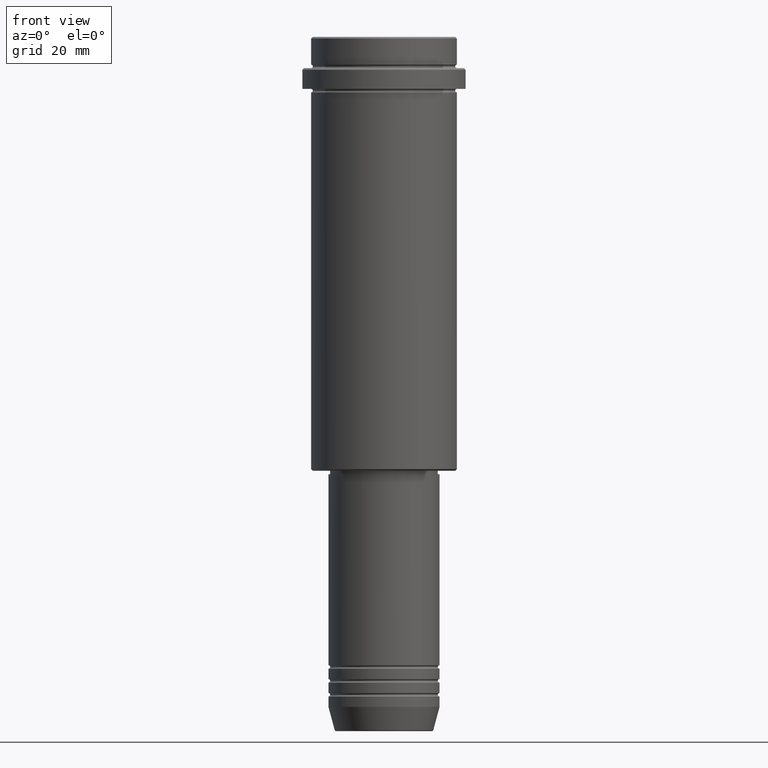
[diagram: clean part render]
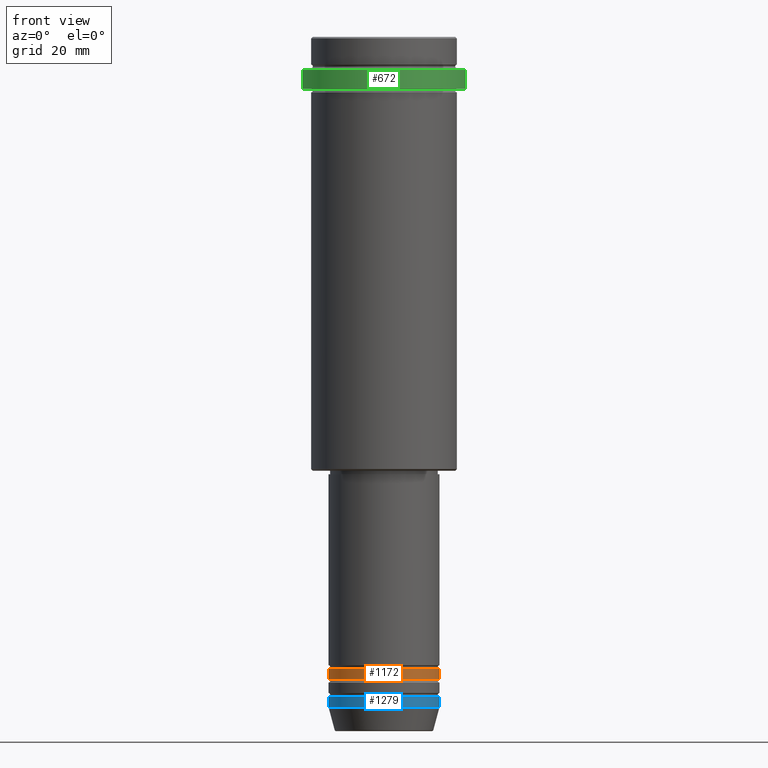
[diagram: same view with three faces highlighted in distinct colors, each labeled with its STEP entity id]
A machine part, front view with three faces highlighted in distinct colors.
Their STEP definitions:

[orange] entity #1172 — the highlighted cylindrical surface (partial cylindrical patch) has radius 16 mm, axis along (-0, -0, 1).
#6 = CYLINDRICAL_SURFACE ( 'NONE', #944, 16.00000000000000000 ) ;
#19 = DIRECTION ( 'NONE',  ( 1.000000000000000000, 0.000000000000000000, 0.000000000000000000 ) ) ;
#49 = CARTESIAN_POINT ( 'NONE',  ( 16.00000000000000000, 0.000000000000000000, -184.9999999999998863 ) ) ;
#88 = VERTEX_POINT ( 'NONE', #446 ) ;
#100 = LINE ( 'NONE', #865, #1234 ) ;
#104 = EDGE_CURVE ( 'NONE', #1313, #421, #488, .T. ) ;
#121 = CARTESIAN_POINT ( 'NONE',  ( 0.000000000000000000, 0.000000000000000000, -181.9999999999998863 ) ) ;
#170 = CARTESIAN_POINT ( 'NONE',  ( 16.00000000000000000, 0.000000000000000000, -181.9999999999998863 ) ) ;
#180 = CARTESIAN_POINT ( 'NONE',  ( -16.00000000000000000, 1.959434878635765131E-15, -184.9999999999998863 ) ) ;
#206 = DIRECTION ( 'NONE',  ( 1.000000000000000000, 0.000000000000000000, 0.000000000000000000 ) ) ;
#215 = VERTEX_POINT ( 'NONE', #180 ) ;
#328 = ORIENTED_EDGE ( 'NONE', *, *, #104, .T. ) ;
#329 = ORIENTED_EDGE ( 'NONE', *, *, #1190, .F. ) ;
#360 = VECTOR ( 'NONE', #1272, 1000.000000000000000 ) ;
#421 = VERTEX_POINT ( 'NONE', #170 ) ;
#446 = CARTESIAN_POINT ( 'NONE',  ( -16.00000000000000000, 1.959434878635765131E-15, -181.9999999999998863 ) ) ;
#477 = AXIS2_PLACEMENT_3D ( 'NONE', #121, #548, #19 ) ;
#488 = LINE ( 'NONE', #804, #360 ) ;
#537 = DIRECTION ( 'NONE',  ( 1.000000000000000000, 0.000000000000000000, 0.000000000000000000 ) ) ;
#545 = AXIS2_PLACEMENT_3D ( 'NONE', #609, #1218, #537 ) ;
#548 = DIRECTION ( 'NONE',  ( -0.000000000000000000, -0.000000000000000000, 1.000000000000000000 ) ) ;
#609 = CARTESIAN_POINT ( 'NONE',  ( 0.000000000000000000, 0.000000000000000000, -184.9999999999998863 ) ) ;
#641 = CIRCLE ( 'NONE', #545, 16.00000000000000000 ) ;
#773 = ORIENTED_EDGE ( 'NONE', *, *, #1106, .F. ) ;
#804 = CARTESIAN_POINT ( 'NONE',  ( 16.00000000000000000, 0.000000000000000000, 0.000000000000000000 ) ) ;
#865 = CARTESIAN_POINT ( 'NONE',  ( -16.00000000000000000, 1.959434878635765131E-15, 0.000000000000000000 ) ) ;
#877 = CIRCLE ( 'NONE', #477, 16.00000000000000000 ) ;
#944 = AXIS2_PLACEMENT_3D ( 'NONE', #1333, #1114, #206 ) ;
#1076 = DIRECTION ( 'NONE',  ( -0.000000000000000000, -0.000000000000000000, 1.000000000000000000 ) ) ;
#1078 = EDGE_CURVE ( 'NONE', #215, #1313, #641, .T. ) ;
#1106 = EDGE_CURVE ( 'NONE', #88, #421, #877, .T. ) ;
#1114 = DIRECTION ( 'NONE',  ( -0.000000000000000000, -0.000000000000000000, 1.000000000000000000 ) ) ;
#1172 = ADVANCED_FACE ( 'NONE', ( #1202 ), #6, .T. ) ;
#1190 = EDGE_CURVE ( 'NONE', #215, #88, #100, .T. ) ;
#1202 = FACE_OUTER_BOUND ( 'NONE', #1219, .T. ) ;
#1218 = DIRECTION ( 'NONE',  ( -0.000000000000000000, -0.000000000000000000, 1.000000000000000000 ) ) ;
#1219 = EDGE_LOOP ( 'NONE', ( #329, #1267, #328, #773 ) ) ;
#1234 = VECTOR ( 'NONE', #1076, 1000.000000000000000 ) ;
#1267 = ORIENTED_EDGE ( 'NONE', *, *, #1078, .T. ) ;
#1272 = DIRECTION ( 'NONE',  ( -0.000000000000000000, -0.000000000000000000, 1.000000000000000000 ) ) ;
#1313 = VERTEX_POINT ( 'NONE', #49 ) ;
#1333 = CARTESIAN_POINT ( 'NONE',  ( 0.000000000000000000, 0.000000000000000000, 0.000000000000000000 ) ) ;

[blue] entity #1279 — the highlighted cylindrical surface (partial cylindrical patch) has radius 16 mm, axis along (-0, -0, 1).
#40 = CARTESIAN_POINT ( 'NONE',  ( 0.000000000000000000, 0.000000000000000000, -190.0000000000000000 ) ) ;
#70 = LINE ( 'NONE', #1395, #1404 ) ;
#74 = CIRCLE ( 'NONE', #875, 16.00000000000000000 ) ;
#79 = FACE_OUTER_BOUND ( 'NONE', #1331, .T. ) ;
#189 = VERTEX_POINT ( 'NONE', #613 ) ;
#227 = CARTESIAN_POINT ( 'NONE',  ( 16.00000000000000000, 0.000000000000000000, 0.000000000000000000 ) ) ;
#265 = VERTEX_POINT ( 'NONE', #922 ) ;
#273 = DIRECTION ( 'NONE',  ( -0.000000000000000000, -0.000000000000000000, 1.000000000000000000 ) ) ;
#359 = DIRECTION ( 'NONE',  ( -0.000000000000000000, -0.000000000000000000, 1.000000000000000000 ) ) ;
#366 = AXIS2_PLACEMENT_3D ( 'NONE', #1342, #359, #1251 ) ;
#390 = CIRCLE ( 'NONE', #1336, 16.00000000000000000 ) ;
#466 = DIRECTION ( 'NONE',  ( -0.000000000000000000, -0.000000000000000000, 1.000000000000000000 ) ) ;
#536 = EDGE_CURVE ( 'NONE', #189, #1043, #70, .T. ) ;
#546 = ORIENTED_EDGE ( 'NONE', *, *, #1142, .T. ) ;
#557 = LINE ( 'NONE', #227, #919 ) ;
#588 = EDGE_CURVE ( 'NONE', #1043, #846, #390, .T. ) ;
#613 = CARTESIAN_POINT ( 'NONE',  ( -16.00000000000000000, 1.959434878635765131E-15, -193.0000000000000000 ) ) ;
#664 = DIRECTION ( 'NONE',  ( -0.000000000000000000, -0.000000000000000000, 1.000000000000000000 ) ) ;
#710 = DIRECTION ( 'NONE',  ( 1.000000000000000000, 0.000000000000000000, 0.000000000000000000 ) ) ;
#754 = ORIENTED_EDGE ( 'NONE', *, *, #536, .F. ) ;
#794 = EDGE_CURVE ( 'NONE', #189, #265, #74, .T. ) ;
#825 = CARTESIAN_POINT ( 'NONE',  ( -16.00000000000000000, 1.959434878635765131E-15, -190.0000000000000000 ) ) ;
#846 = VERTEX_POINT ( 'NONE', #1071 ) ;
#875 = AXIS2_PLACEMENT_3D ( 'NONE', #1368, #273, #710 ) ;
#919 = VECTOR ( 'NONE', #664, 1000.000000000000000 ) ;
#922 = CARTESIAN_POINT ( 'NONE',  ( 16.00000000000000000, 0.000000000000000000, -193.0000000000000000 ) ) ;
#1043 = VERTEX_POINT ( 'NONE', #825 ) ;
#1071 = CARTESIAN_POINT ( 'NONE',  ( 16.00000000000000000, 0.000000000000000000, -190.0000000000000000 ) ) ;
#1080 = ORIENTED_EDGE ( 'NONE', *, *, #588, .F. ) ;
#1142 = EDGE_CURVE ( 'NONE', #265, #846, #557, .T. ) ;
#1196 = ORIENTED_EDGE ( 'NONE', *, *, #794, .T. ) ;
#1251 = DIRECTION ( 'NONE',  ( 1.000000000000000000, 0.000000000000000000, 0.000000000000000000 ) ) ;
#1258 = CYLINDRICAL_SURFACE ( 'NONE', #366, 16.00000000000000000 ) ;
#1279 = ADVANCED_FACE ( 'NONE', ( #79 ), #1258, .T. ) ;
#1291 = DIRECTION ( 'NONE',  ( -0.000000000000000000, -0.000000000000000000, 1.000000000000000000 ) ) ;
#1331 = EDGE_LOOP ( 'NONE', ( #754, #1196, #546, #1080 ) ) ;
#1336 = AXIS2_PLACEMENT_3D ( 'NONE', #40, #466, #1358 ) ;
#1342 = CARTESIAN_POINT ( 'NONE',  ( 0.000000000000000000, 0.000000000000000000, 0.000000000000000000 ) ) ;
#1358 = DIRECTION ( 'NONE',  ( 1.000000000000000000, 0.000000000000000000, 0.000000000000000000 ) ) ;
#1368 = CARTESIAN_POINT ( 'NONE',  ( 0.000000000000000000, 0.000000000000000000, -193.0000000000000000 ) ) ;
#1395 = CARTESIAN_POINT ( 'NONE',  ( -16.00000000000000000, 1.959434878635765131E-15, 0.000000000000000000 ) ) ;
#1404 = VECTOR ( 'NONE', #1291, 1000.000000000000000 ) ;

[green] entity #672 — the highlighted cylindrical surface (partial cylindrical patch) has radius 23.5 mm, axis along (-0, -0, 1).
#80 = ORIENTED_EDGE ( 'NONE', *, *, #1240, .F. ) ;
#84 = VERTEX_POINT ( 'NONE', #1000 ) ;
#131 = CARTESIAN_POINT ( 'NONE',  ( 0.000000000000000000, 0.000000000000000000, 0.000000000000000000 ) ) ;
#159 = VERTEX_POINT ( 'NONE', #367 ) ;
#212 = AXIS2_PLACEMENT_3D ( 'NONE', #1039, #611, #1270 ) ;
#264 = LINE ( 'NONE', #700, #547 ) ;
#281 = VERTEX_POINT ( 'NONE', #1136 ) ;
#282 = CARTESIAN_POINT ( 'NONE',  ( 23.50000000000000000, 0.000000000000000000, 0.000000000000000000 ) ) ;
#354 = DIRECTION ( 'NONE',  ( -0.000000000000000000, -0.000000000000000000, 1.000000000000000000 ) ) ;
#367 = CARTESIAN_POINT ( 'NONE',  ( -23.50000000000000000, 2.877919977996280320E-15, -9.500000000000000000 ) ) ;
#461 = CYLINDRICAL_SURFACE ( 'NONE', #498, 23.50000000000000000 ) ;
#498 = AXIS2_PLACEMENT_3D ( 'NONE', #131, #354, #1003 ) ;
#547 = VECTOR ( 'NONE', #1033, 1000.000000000000000 ) ;
#601 = DIRECTION ( 'NONE',  ( -0.000000000000000000, -0.000000000000000000, 1.000000000000000000 ) ) ;
#611 = DIRECTION ( 'NONE',  ( -0.000000000000000000, -0.000000000000000000, 1.000000000000000000 ) ) ;
#672 = ADVANCED_FACE ( 'NONE', ( #1017 ), #461, .T. ) ;
#700 = CARTESIAN_POINT ( 'NONE',  ( -23.50000000000000000, 2.877919977996280320E-15, 0.000000000000000000 ) ) ;
#705 = LINE ( 'NONE', #282, #1211 ) ;
#736 = CIRCLE ( 'NONE', #1183, 23.50000000000000000 ) ;
#755 = EDGE_LOOP ( 'NONE', ( #80, #870, #1022, #1177 ) ) ;
#870 = ORIENTED_EDGE ( 'NONE', *, *, #1001, .T. ) ;
#984 = VERTEX_POINT ( 'NONE', #1005 ) ;
#1000 = CARTESIAN_POINT ( 'NONE',  ( -23.50000000000000711, 2.877919977996281109E-15, -15.00000000000000000 ) ) ;
#1001 = EDGE_CURVE ( 'NONE', #84, #984, #1339, .T. ) ;
#1003 = DIRECTION ( 'NONE',  ( 1.000000000000000000, 0.000000000000000000, 0.000000000000000000 ) ) ;
#1005 = CARTESIAN_POINT ( 'NONE',  ( 23.50000000000000355, 0.000000000000000000, -15.00000000000000000 ) ) ;
#1017 = FACE_OUTER_BOUND ( 'NONE', #755, .T. ) ;
#1022 = ORIENTED_EDGE ( 'NONE', *, *, #1060, .T. ) ;
#1033 = DIRECTION ( 'NONE',  ( -0.000000000000000000, -0.000000000000000000, 1.000000000000000000 ) ) ;
#1039 = CARTESIAN_POINT ( 'NONE',  ( 0.000000000000000000, 0.000000000000000000, -15.00000000000000000 ) ) ;
#1060 = EDGE_CURVE ( 'NONE', #984, #281, #705, .T. ) ;
#1136 = CARTESIAN_POINT ( 'NONE',  ( 23.50000000000000000, 0.000000000000000000, -9.500000000000000000 ) ) ;
#1141 = CARTESIAN_POINT ( 'NONE',  ( 0.000000000000000000, 0.000000000000000000, -9.500000000000000000 ) ) ;
#1146 = DIRECTION ( 'NONE',  ( 1.000000000000000000, 0.000000000000000000, 0.000000000000000000 ) ) ;
#1177 = ORIENTED_EDGE ( 'NONE', *, *, #1283, .T. ) ;
#1183 = AXIS2_PLACEMENT_3D ( 'NONE', #1141, #1344, #1146 ) ;
#1211 = VECTOR ( 'NONE', #601, 1000.000000000000000 ) ;
#1240 = EDGE_CURVE ( 'NONE', #84, #159, #264, .T. ) ;
#1270 = DIRECTION ( 'NONE',  ( 1.000000000000000000, 0.000000000000000000, 0.000000000000000000 ) ) ;
#1283 = EDGE_CURVE ( 'NONE', #281, #159, #736, .T. ) ;
#1339 = CIRCLE ( 'NONE', #212, 23.50000000000000355 ) ;
#1344 = DIRECTION ( 'NONE',  ( 0.000000000000000000, 0.000000000000000000, -1.000000000000000000 ) ) ;